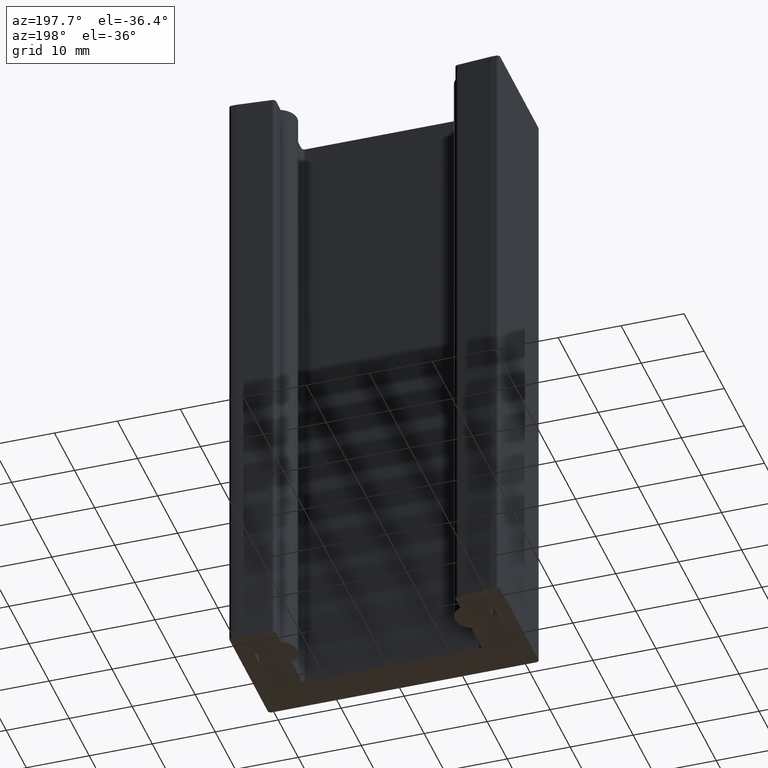
[diagram: clean part render]
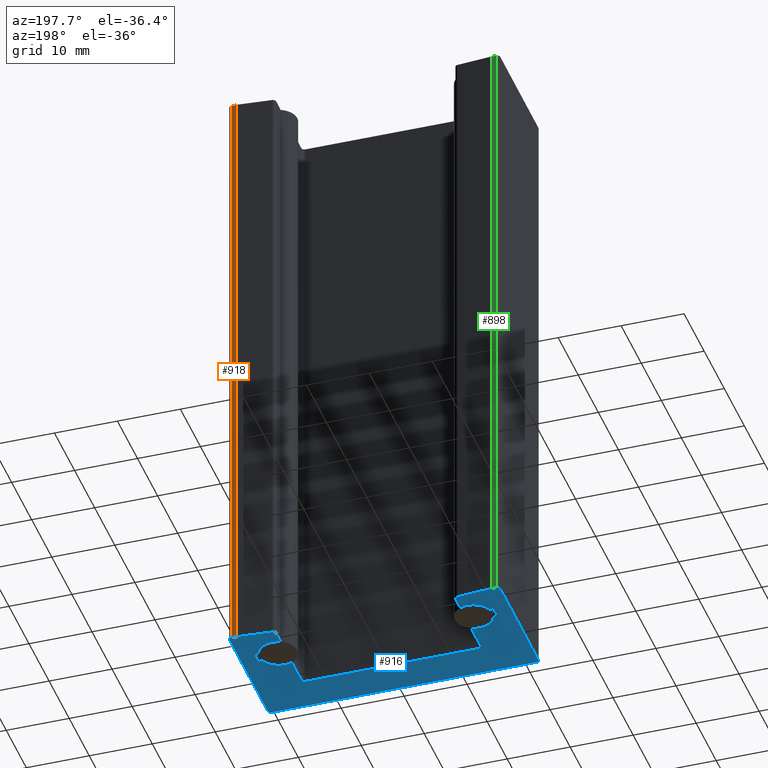
[diagram: same view with three faces highlighted in distinct colors, each labeled with its STEP entity id]
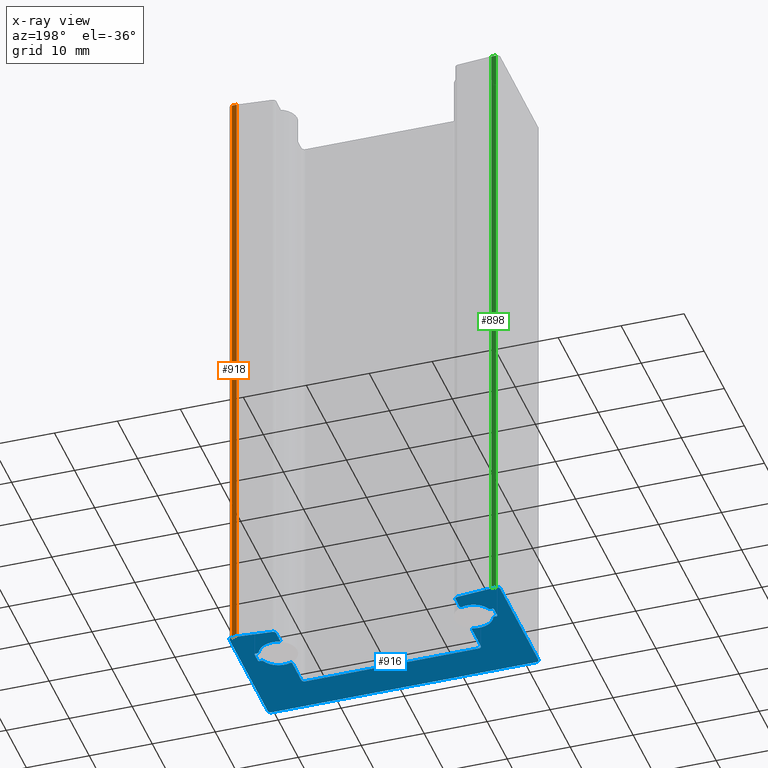
[diagram: x-ray of the same camera — body ghosted, the three highlighted faces saturated]
A machine part, auxiliary view with three faces highlighted in distinct colors.
The next image is the same camera in x-ray (body ghosted, the three faces saturated) — at least one of them is partly hidden behind the body in this view.
Their STEP definitions:

[orange] entity #918 — the highlighted planar face has unit normal (-0, 1, 0).
#44=PLANE('',#1085);
#82=FACE_OUTER_BOUND('',#131,.T.);
#131=EDGE_LOOP('',(#788,#789,#790,#791));
#158=LINE('',#1437,#239);
#214=LINE('',#1642,#295);
#215=LINE('',#1645,#296);
#216=LINE('',#1647,#297);
#239=VECTOR('',#1136,10.);
#295=VECTOR('',#1336,10.);
#296=VECTOR('',#1341,10.);
#297=VECTOR('',#1344,10.);
#376=VERTEX_POINT('',#1434);
#377=VERTEX_POINT('',#1436);
#453=VERTEX_POINT('',#1639);
#454=VERTEX_POINT('',#1641);
#468=EDGE_CURVE('',#376,#377,#158,.T.);
#571=EDGE_CURVE('',#453,#454,#214,.T.);
#573=EDGE_CURVE('',#454,#376,#215,.T.);
#574=EDGE_CURVE('',#377,#453,#216,.T.);
#788=ORIENTED_EDGE('',*,*,#573,.F.);
#789=ORIENTED_EDGE('',*,*,#571,.F.);
#790=ORIENTED_EDGE('',*,*,#574,.F.);
#791=ORIENTED_EDGE('',*,*,#468,.F.);
#918=ADVANCED_FACE('',(#82),#44,.T.);
#1085=AXIS2_PLACEMENT_3D('',#1646,#1342,#1343);
#1136=DIRECTION('',(-1.,-1.13604216473272E-15,0.));
#1336=DIRECTION('',(1.,1.13604216473272E-15,0.));
#1341=DIRECTION('',(0.,0.,1.));
#1342=DIRECTION('center_axis',(-1.13604216473272E-15,1.,0.));
#1343=DIRECTION('ref_axis',(-1.,-1.13604216473272E-15,0.));
#1344=DIRECTION('',(0.,0.,-1.));
#1434=CARTESIAN_POINT('',(21.,10.,-290.));
#1436=CARTESIAN_POINT('',(20.2200000000002,10.,-290.));
#1437=CARTESIAN_POINT('',(-5.64714855914739E-15,9.99999999999999,-290.));
#1639=CARTESIAN_POINT('',(20.2200000000002,10.,-390.));
#1641=CARTESIAN_POINT('',(21.,10.,-390.));
#1642=CARTESIAN_POINT('',(-5.64714855914739E-15,9.99999999999999,-390.));
#1645=CARTESIAN_POINT('',(21.,10.,0.));
#1646=CARTESIAN_POINT('Origin',(21.5,10.,0.));
#1647=CARTESIAN_POINT('',(20.2200000000002,10.,195.));

[blue] entity #916 — the highlighted planar face has unit normal (0, 0, -1).
#43=PLANE('',#1072);
#80=FACE_OUTER_BOUND('',#129,.T.);
#129=EDGE_LOOP('',(#740,#741,#742,#743,#744,#745,#746,#747,#748,#749,#750,
#751,#752,#753,#754,#755,#756,#757,#758,#759,#760,#761,#762,#763,#764,#765,
#766,#767,#768,#769,#770,#771,#772,#773,#774,#775,#776,#777,#778,#779,#780,
#781,#782,#783));
#155=LINE('',#1426,#236);
#175=LINE('',#1519,#256);
#177=LINE('',#1522,#258);
#180=LINE('',#1531,#261);
#184=LINE('',#1540,#265);
#189=LINE('',#1554,#270);
#193=LINE('',#1569,#274);
#196=LINE('',#1577,#277);
#199=LINE('',#1585,#280);
#203=LINE('',#1598,#284);
#207=LINE('',#1608,#288);
#208=LINE('',#1610,#289);
#209=LINE('',#1618,#290);
#210=LINE('',#1622,#291);
#211=LINE('',#1626,#292);
#212=LINE('',#1634,#293);
#213=LINE('',#1638,#294);
#214=LINE('',#1642,#295);
#236=VECTOR('',#1127,10.);
#256=VECTOR('',#1205,10.);
#258=VECTOR('',#1209,10.);
#261=VECTOR('',#1218,10.);
#265=VECTOR('',#1228,10.);
#270=VECTOR('',#1243,10.);
#274=VECTOR('',#1261,10.);
#277=VECTOR('',#1270,10.);
#280=VECTOR('',#1279,10.);
#284=VECTOR('',#1297,10.);
#288=VECTOR('',#1307,10.);
#289=VECTOR('',#1310,10.);
#290=VECTOR('',#1317,10.);
#291=VECTOR('',#1320,10.);
#292=VECTOR('',#1323,10.);
#293=VECTOR('',#1330,10.);
#294=VECTOR('',#1333,10.);
#295=VECTOR('',#1336,10.);
#313=CIRCLE('',#1005,0.5);
#340=CIRCLE('',#1035,0.5);
#341=CIRCLE('',#1039,0.5);
#342=CIRCLE('',#1042,0.5);
#343=CIRCLE('',#1045,0.5);
#344=CIRCLE('',#1047,0.5);
#345=CIRCLE('',#1050,0.2);
#346=CIRCLE('',#1052,3.);
#347=CIRCLE('',#1054,0.2);
#348=CIRCLE('',#1057,0.2);
#349=CIRCLE('',#1060,0.2);
#350=CIRCLE('',#1063,0.2);
#351=CIRCLE('',#1065,3.);
#352=CIRCLE('',#1067,0.2);
#353=CIRCLE('',#1070,0.5);
#354=CIRCLE('',#1073,0.2);
#355=CIRCLE('',#1074,3.);
#356=CIRCLE('',#1075,0.2);
#357=CIRCLE('',#1076,0.2);
#358=CIRCLE('',#1077,0.2);
#359=CIRCLE('',#1078,0.2);
#360=CIRCLE('',#1079,3.);
#361=CIRCLE('',#1080,0.2);
#362=CIRCLE('',#1081,0.5);
#363=CIRCLE('',#1082,0.5);
#364=CIRCLE('',#1083,0.5);
#367=VERTEX_POINT('',#1413);
#368=VERTEX_POINT('',#1414);
#372=VERTEX_POINT('',#1424);
#414=VERTEX_POINT('',#1512);
#415=VERTEX_POINT('',#1513);
#416=VERTEX_POINT('',#1518);
#417=VERTEX_POINT('',#1524);
#418=VERTEX_POINT('',#1526);
#419=VERTEX_POINT('',#1530);
#420=VERTEX_POINT('',#1534);
#421=VERTEX_POINT('',#1538);
#422=VERTEX_POINT('',#1542);
#423=VERTEX_POINT('',#1546);
#424=VERTEX_POINT('',#1547);
#425=VERTEX_POINT('',#1552);
#426=VERTEX_POINT('',#1556);
#427=VERTEX_POINT('',#1560);
#428=VERTEX_POINT('',#1564);
#429=VERTEX_POINT('',#1568);
#430=VERTEX_POINT('',#1572);
#431=VERTEX_POINT('',#1576);
#432=VERTEX_POINT('',#1580);
#433=VERTEX_POINT('',#1584);
#434=VERTEX_POINT('',#1588);
#435=VERTEX_POINT('',#1592);
#436=VERTEX_POINT('',#1600);
#437=VERTEX_POINT('',#1602);
#438=VERTEX_POINT('',#1606);
#439=VERTEX_POINT('',#1611);
#440=VERTEX_POINT('',#1613);
#441=VERTEX_POINT('',#1615);
#442=VERTEX_POINT('',#1617);
#443=VERTEX_POINT('',#1619);
#444=VERTEX_POINT('',#1621);
#445=VERTEX_POINT('',#1623);
#446=VERTEX_POINT('',#1625);
#447=VERTEX_POINT('',#1627);
#448=VERTEX_POINT('',#1629);
#449=VERTEX_POINT('',#1631);
#450=VERTEX_POINT('',#1633);
#451=VERTEX_POINT('',#1635);
#452=VERTEX_POINT('',#1637);
#453=VERTEX_POINT('',#1639);
#454=VERTEX_POINT('',#1641);
#457=EDGE_CURVE('',#367,#368,#313,.T.);
#463=EDGE_CURVE('',#372,#367,#155,.T.);
#506=EDGE_CURVE('',#414,#415,#340,.T.);
#509=EDGE_CURVE('',#416,#415,#175,.T.);
#511=EDGE_CURVE('',#414,#368,#177,.T.);
#513=EDGE_CURVE('',#418,#417,#341,.T.);
#515=EDGE_CURVE('',#418,#419,#180,.T.);
#517=EDGE_CURVE('',#372,#420,#342,.T.);
#520=EDGE_CURVE('',#421,#420,#184,.T.);
#522=EDGE_CURVE('',#421,#422,#343,.T.);
#523=EDGE_CURVE('',#423,#424,#344,.T.);
#527=EDGE_CURVE('',#425,#424,#189,.T.);
#528=EDGE_CURVE('',#426,#419,#345,.T.);
#530=EDGE_CURVE('',#426,#427,#346,.T.);
#532=EDGE_CURVE('',#428,#427,#347,.T.);
#534=EDGE_CURVE('',#428,#429,#193,.T.);
#536=EDGE_CURVE('',#430,#429,#348,.T.);
#538=EDGE_CURVE('',#430,#431,#196,.T.);
#540=EDGE_CURVE('',#432,#431,#349,.T.);
#542=EDGE_CURVE('',#432,#433,#199,.T.);
#544=EDGE_CURVE('',#434,#433,#350,.T.);
#546=EDGE_CURVE('',#434,#435,#351,.T.);
#548=EDGE_CURVE('',#425,#435,#352,.T.);
#549=EDGE_CURVE('',#423,#422,#203,.T.);
#551=EDGE_CURVE('',#436,#437,#353,.T.);
#554=EDGE_CURVE('',#436,#438,#207,.T.);
#555=EDGE_CURVE('',#417,#437,#208,.T.);
#556=EDGE_CURVE('',#439,#438,#354,.T.);
#557=EDGE_CURVE('',#439,#440,#355,.T.);
#558=EDGE_CURVE('',#441,#440,#356,.T.);
#559=EDGE_CURVE('',#441,#442,#209,.T.);
#560=EDGE_CURVE('',#443,#442,#357,.T.);
#561=EDGE_CURVE('',#443,#444,#210,.T.);
#562=EDGE_CURVE('',#445,#444,#358,.T.);
#563=EDGE_CURVE('',#445,#446,#211,.T.);
#564=EDGE_CURVE('',#447,#446,#359,.T.);
#565=EDGE_CURVE('',#447,#448,#360,.T.);
#566=EDGE_CURVE('',#449,#448,#361,.T.);
#567=EDGE_CURVE('',#449,#450,#212,.T.);
#568=EDGE_CURVE('',#451,#450,#362,.T.);
#569=EDGE_CURVE('',#451,#452,#213,.T.);
#570=EDGE_CURVE('',#453,#452,#363,.T.);
#571=EDGE_CURVE('',#453,#454,#214,.T.);
#572=EDGE_CURVE('',#416,#454,#364,.T.);
#740=ORIENTED_EDGE('',*,*,#457,.F.);
#741=ORIENTED_EDGE('',*,*,#463,.F.);
#742=ORIENTED_EDGE('',*,*,#517,.T.);
#743=ORIENTED_EDGE('',*,*,#520,.F.);
#744=ORIENTED_EDGE('',*,*,#522,.T.);
#745=ORIENTED_EDGE('',*,*,#549,.F.);
#746=ORIENTED_EDGE('',*,*,#523,.T.);
#747=ORIENTED_EDGE('',*,*,#527,.F.);
#748=ORIENTED_EDGE('',*,*,#548,.T.);
#749=ORIENTED_EDGE('',*,*,#546,.F.);
#750=ORIENTED_EDGE('',*,*,#544,.T.);
#751=ORIENTED_EDGE('',*,*,#542,.F.);
#752=ORIENTED_EDGE('',*,*,#540,.T.);
#753=ORIENTED_EDGE('',*,*,#538,.F.);
#754=ORIENTED_EDGE('',*,*,#536,.T.);
#755=ORIENTED_EDGE('',*,*,#534,.F.);
#756=ORIENTED_EDGE('',*,*,#532,.T.);
#757=ORIENTED_EDGE('',*,*,#530,.F.);
#758=ORIENTED_EDGE('',*,*,#528,.T.);
#759=ORIENTED_EDGE('',*,*,#515,.F.);
#760=ORIENTED_EDGE('',*,*,#513,.T.);
#761=ORIENTED_EDGE('',*,*,#555,.T.);
#762=ORIENTED_EDGE('',*,*,#551,.F.);
#763=ORIENTED_EDGE('',*,*,#554,.T.);
#764=ORIENTED_EDGE('',*,*,#556,.F.);
#765=ORIENTED_EDGE('',*,*,#557,.T.);
#766=ORIENTED_EDGE('',*,*,#558,.F.);
#767=ORIENTED_EDGE('',*,*,#559,.T.);
#768=ORIENTED_EDGE('',*,*,#560,.F.);
#769=ORIENTED_EDGE('',*,*,#561,.T.);
#770=ORIENTED_EDGE('',*,*,#562,.F.);
#771=ORIENTED_EDGE('',*,*,#563,.T.);
#772=ORIENTED_EDGE('',*,*,#564,.F.);
#773=ORIENTED_EDGE('',*,*,#565,.T.);
#774=ORIENTED_EDGE('',*,*,#566,.F.);
#775=ORIENTED_EDGE('',*,*,#567,.T.);
#776=ORIENTED_EDGE('',*,*,#568,.F.);
#777=ORIENTED_EDGE('',*,*,#569,.T.);
#778=ORIENTED_EDGE('',*,*,#570,.F.);
#779=ORIENTED_EDGE('',*,*,#571,.T.);
#780=ORIENTED_EDGE('',*,*,#572,.F.);
#781=ORIENTED_EDGE('',*,*,#509,.T.);
#782=ORIENTED_EDGE('',*,*,#506,.F.);
#783=ORIENTED_EDGE('',*,*,#511,.T.);
#916=ADVANCED_FACE('',(#80),#43,.T.);
#1005=AXIS2_PLACEMENT_3D('',#1415,#1117,#1118);
#1035=AXIS2_PLACEMENT_3D('',#1514,#1199,#1200);
#1039=AXIS2_PLACEMENT_3D('',#1527,#1213,#1214);
#1042=AXIS2_PLACEMENT_3D('',#1535,#1222,#1223);
#1045=AXIS2_PLACEMENT_3D('',#1544,#1232,#1233);
#1047=AXIS2_PLACEMENT_3D('',#1548,#1236,#1237);
#1050=AXIS2_PLACEMENT_3D('',#1557,#1246,#1247);
#1052=AXIS2_PLACEMENT_3D('',#1561,#1251,#1252);
#1054=AXIS2_PLACEMENT_3D('',#1565,#1256,#1257);
#1057=AXIS2_PLACEMENT_3D('',#1573,#1265,#1266);
#1060=AXIS2_PLACEMENT_3D('',#1581,#1274,#1275);
#1063=AXIS2_PLACEMENT_3D('',#1589,#1283,#1284);
#1065=AXIS2_PLACEMENT_3D('',#1593,#1288,#1289);
#1067=AXIS2_PLACEMENT_3D('',#1596,#1293,#1294);
#1070=AXIS2_PLACEMENT_3D('',#1603,#1301,#1302);
#1072=AXIS2_PLACEMENT_3D('',#1609,#1308,#1309);
#1073=AXIS2_PLACEMENT_3D('',#1612,#1311,#1312);
#1074=AXIS2_PLACEMENT_3D('',#1614,#1313,#1314);
#1075=AXIS2_PLACEMENT_3D('',#1616,#1315,#1316);
#1076=AXIS2_PLACEMENT_3D('',#1620,#1318,#1319);
#1077=AXIS2_PLACEMENT_3D('',#1624,#1321,#1322);
#1078=AXIS2_PLACEMENT_3D('',#1628,#1324,#1325);
#1079=AXIS2_PLACEMENT_3D('',#1630,#1326,#1327);
#1080=AXIS2_PLACEMENT_3D('',#1632,#1328,#1329);
#1081=AXIS2_PLACEMENT_3D('',#1636,#1331,#1332);
#1082=AXIS2_PLACEMENT_3D('',#1640,#1334,#1335);
#1083=AXIS2_PLACEMENT_3D('',#1643,#1337,#1338);
#1117=DIRECTION('center_axis',(0.,0.,1.));
#1118=DIRECTION('ref_axis',(-0.707106781186546,-0.707106781186549,0.));
#1127=DIRECTION('',(7.8055758929729E-16,-1.,0.));
#1199=DIRECTION('center_axis',(0.,0.,1.));
#1200=DIRECTION('ref_axis',(0.707106781186546,-0.707106781186549,0.));
#1205=DIRECTION('',(4.44089209850063E-16,-1.,0.));
#1209=DIRECTION('',(-1.,-1.03276560430247E-16,0.));
#1213=DIRECTION('center_axis',(0.,0.,1.));
#1214=DIRECTION('ref_axis',(-0.707106781186545,-0.70710678118655,0.));
#1218=DIRECTION('',(-7.30467679284014E-16,1.,0.));
#1222=DIRECTION('center_axis',(0.,0.,-1.));
#1223=DIRECTION('ref_axis',(-0.707106781186547,0.707106781186548,0.));
#1228=DIRECTION('',(-1.,-8.86046344146347E-17,0.));
#1232=DIRECTION('center_axis',(0.,0.,-1.));
#1233=DIRECTION('ref_axis',(0.0436193873653401,0.999048221581858,0.));
#1236=DIRECTION('center_axis',(0.,0.,-1.));
#1237=DIRECTION('ref_axis',(0.737277336810123,0.675590207615661,0.));
#1243=DIRECTION('',(-7.30467679284014E-16,1.,0.));
#1246=DIRECTION('center_axis',(0.,0.,-1.));
#1247=DIRECTION('ref_axis',(0.579601155968485,0.814900300650329,0.));
#1251=DIRECTION('center_axis',(0.,0.,-1.));
#1252=DIRECTION('ref_axis',(-1.,-1.22464679914735E-15,0.));
#1256=DIRECTION('center_axis',(0.,0.,-1.));
#1257=DIRECTION('ref_axis',(0.559016994374946,0.829156197588851,0.));
#1261=DIRECTION('',(-1.,-2.05123097603624E-15,0.));
#1265=DIRECTION('center_axis',(0.,0.,1.));
#1266=DIRECTION('ref_axis',(-0.707106781186547,-0.707106781186548,0.));
#1270=DIRECTION('',(-1.22464679914735E-15,1.,0.));
#1274=DIRECTION('center_axis',(0.,0.,1.));
#1275=DIRECTION('ref_axis',(-0.707106781186548,0.707106781186547,0.));
#1279=DIRECTION('',(1.,1.22464679914735E-15,0.));
#1283=DIRECTION('center_axis',(0.,0.,-1.));
#1284=DIRECTION('ref_axis',(0.559016994374947,-0.829156197588851,0.));
#1288=DIRECTION('center_axis',(0.,0.,-1.));
#1289=DIRECTION('ref_axis',(-1.,-1.22464679914735E-15,0.));
#1293=DIRECTION('center_axis',(0.,0.,-1.));
#1294=DIRECTION('ref_axis',(0.579601155968474,-0.814900300650336,0.));
#1297=DIRECTION('',(-0.996194698091746,0.0871557427476573,0.));
#1301=DIRECTION('center_axis',(0.,0.,-1.));
#1302=DIRECTION('ref_axis',(0.707106781186546,-0.707106781186549,0.));
#1307=DIRECTION('',(-4.94179119863339E-16,1.,0.));
#1308=DIRECTION('center_axis',(0.,0.,-1.));
#1309=DIRECTION('ref_axis',(-1.,0.,0.));
#1310=DIRECTION('',(1.,3.5059674461847E-16,0.));
#1311=DIRECTION('center_axis',(0.,0.,1.));
#1312=DIRECTION('ref_axis',(-0.579601155968486,0.814900300650328,0.));
#1313=DIRECTION('center_axis',(0.,0.,1.));
#1314=DIRECTION('ref_axis',(1.,0.,0.));
#1315=DIRECTION('center_axis',(0.,0.,1.));
#1316=DIRECTION('ref_axis',(-0.559016994374947,0.82915619758885,0.));
#1317=DIRECTION('',(1.,-8.26584176888886E-16,0.));
#1318=DIRECTION('center_axis',(0.,0.,-1.));
#1319=DIRECTION('ref_axis',(0.707106781186548,-0.707106781186548,0.));
#1320=DIRECTION('',(0.,1.,0.));
#1321=DIRECTION('center_axis',(0.,0.,-1.));
#1322=DIRECTION('ref_axis',(0.707106781186548,0.707106781186548,0.));
#1323=DIRECTION('',(-1.,0.,0.));
#1324=DIRECTION('center_axis',(0.,0.,1.));
#1325=DIRECTION('ref_axis',(-0.559016994374946,-0.829156197588851,0.));
#1326=DIRECTION('center_axis',(0.,0.,1.));
#1327=DIRECTION('ref_axis',(1.,0.,0.));
#1328=DIRECTION('center_axis',(0.,0.,1.));
#1329=DIRECTION('ref_axis',(-0.579601155968473,-0.814900300650337,0.));
#1330=DIRECTION('',(-4.94179119863339E-16,1.,0.));
#1331=DIRECTION('center_axis',(0.,0.,1.));
#1332=DIRECTION('ref_axis',(-0.737277336810124,0.67559020761566,0.));
#1333=DIRECTION('',(0.996194698091746,0.0871557427476585,0.));
#1334=DIRECTION('center_axis',(0.,0.,1.));
#1335=DIRECTION('ref_axis',(-0.0436193873653413,0.999048221581858,0.));
#1336=DIRECTION('',(1.,1.13604216473272E-15,0.));
#1337=DIRECTION('center_axis',(0.,0.,1.));
#1338=DIRECTION('ref_axis',(0.707106781186546,0.707106781186549,0.));
#1413=CARTESIAN_POINT('',(-21.5,-9.49999999999999,-390.));
#1414=CARTESIAN_POINT('',(-21.,-9.99999999999999,-390.));
#1415=CARTESIAN_POINT('Origin',(-21.,-9.49999999999999,-390.));
#1424=CARTESIAN_POINT('',(-21.5,9.49999999999999,-390.));
#1426=CARTESIAN_POINT('',(-21.5,9.99999999999999,-390.));
#1512=CARTESIAN_POINT('',(21.,-9.99999999999999,-390.));
#1513=CARTESIAN_POINT('',(21.5,-9.49999999999999,-390.));
#1514=CARTESIAN_POINT('Origin',(21.,-9.49999999999999,-390.));
#1518=CARTESIAN_POINT('',(21.5,9.50000000000001,-390.));
#1519=CARTESIAN_POINT('',(21.5,10.,-390.));
#1522=CARTESIAN_POINT('',(21.5,-9.99999999999999,-390.));
#1524=CARTESIAN_POINT('',(-13.75,-4.,-390.));
#1526=CARTESIAN_POINT('',(-14.25,-3.5,-390.));
#1527=CARTESIAN_POINT('Origin',(-13.75,-3.5,-390.));
#1530=CARTESIAN_POINT('',(-14.25,0.977170199961623,-390.));
#1531=CARTESIAN_POINT('',(-14.25,4.73980129876094,-390.));
#1534=CARTESIAN_POINT('',(-21.,9.99999999999999,-390.));
#1535=CARTESIAN_POINT('Origin',(-21.,9.49999999999999,-390.));
#1538=CARTESIAN_POINT('',(-20.2200000000002,9.99999999999999,-390.));
#1540=CARTESIAN_POINT('',(-5.64714855914739E-15,9.99999999999999,-390.));
#1542=CARTESIAN_POINT('',(-20.1764221286264,9.99809734904586,-390.));
#1544=CARTESIAN_POINT('Origin',(-20.2200000000002,9.49999999999999,-390.));
#1546=CARTESIAN_POINT('',(-14.7064221286262,9.51953435955905,-390.));
#1547=CARTESIAN_POINT('',(-14.25,9.02143701051317,-390.));
#1548=CARTESIAN_POINT('Origin',(-14.75,9.02143701051317,-390.));
#1552=CARTESIAN_POINT('',(-14.25,7.02282980003837,-390.));
#1554=CARTESIAN_POINT('',(-14.25,4.73980129876094,-390.));
#1556=CARTESIAN_POINT('',(-14.515625,1.16609706246402,-390.));
#1557=CARTESIAN_POINT('Origin',(-14.45,0.977170199961623,-390.));
#1560=CARTESIAN_POINT('',(-18.2810744326609,2.87499999999999,-390.));
#1561=CARTESIAN_POINT('Origin',(-15.5,3.99999999999999,-390.));
#1564=CARTESIAN_POINT('',(-18.4664793948382,2.99999999999999,-390.));
#1565=CARTESIAN_POINT('Origin',(-18.4664793948382,2.79999999999999,-390.));
#1568=CARTESIAN_POINT('',(-18.8,2.99999999999999,-390.));
#1569=CARTESIAN_POINT('',(-14.875,3.,-390.));
#1572=CARTESIAN_POINT('',(-19.,3.19999999999999,-390.));
#1573=CARTESIAN_POINT('Origin',(-18.8,3.19999999999999,-390.));
#1576=CARTESIAN_POINT('',(-19.,4.79999999999999,-390.));
#1577=CARTESIAN_POINT('',(-19.,2.49999999999999,-390.));
#1580=CARTESIAN_POINT('',(-18.8,4.99999999999999,-390.));
#1581=CARTESIAN_POINT('Origin',(-18.8,4.79999999999999,-390.));
#1584=CARTESIAN_POINT('',(-18.4664793948383,4.99999999999999,-390.));
#1585=CARTESIAN_POINT('',(-14.5392135623731,4.99999999999999,-390.));
#1588=CARTESIAN_POINT('',(-18.2810744326609,5.12499999999999,-390.));
#1589=CARTESIAN_POINT('Origin',(-18.4664793948383,5.19999999999999,-390.));
#1592=CARTESIAN_POINT('',(-14.515625,6.83390293753597,-390.));
#1593=CARTESIAN_POINT('Origin',(-15.5,3.99999999999999,-390.));
#1596=CARTESIAN_POINT('Origin',(-14.45,7.02282980003837,-390.));
#1598=CARTESIAN_POINT('',(-15.0758490513706,9.55185502730045,-390.));
#1600=CARTESIAN_POINT('',(14.25,-3.49999999999999,-390.));
#1602=CARTESIAN_POINT('',(13.75,-3.99999999999999,-390.));
#1603=CARTESIAN_POINT('Origin',(13.75,-3.49999999999999,-390.));
#1606=CARTESIAN_POINT('',(14.25,0.977170199961641,-390.));
#1608=CARTESIAN_POINT('',(14.25,4.73980129876096,-390.));
#1609=CARTESIAN_POINT('Origin',(10.75,6.66133814775094E-15,-390.));
#1610=CARTESIAN_POINT('',(12.5,-3.99999999999999,-390.));
#1611=CARTESIAN_POINT('',(14.515625,1.16609706246404,-390.));
#1612=CARTESIAN_POINT('Origin',(14.45,0.977170199961641,-390.));
#1613=CARTESIAN_POINT('',(18.2810744326609,2.87500000000001,-390.));
#1614=CARTESIAN_POINT('Origin',(15.5,4.00000000000001,-390.));
#1615=CARTESIAN_POINT('',(18.4664793948382,3.00000000000001,-390.));
#1616=CARTESIAN_POINT('Origin',(18.4664793948382,2.80000000000001,-390.));
#1617=CARTESIAN_POINT('',(18.8,3.00000000000001,-390.));
#1618=CARTESIAN_POINT('',(14.875,3.00000000000002,-390.));
#1619=CARTESIAN_POINT('',(19.,3.20000000000001,-390.));
#1620=CARTESIAN_POINT('Origin',(18.8,3.20000000000001,-390.));
#1621=CARTESIAN_POINT('',(19.,4.80000000000001,-390.));
#1622=CARTESIAN_POINT('',(19.,2.50000000000001,-390.));
#1623=CARTESIAN_POINT('',(18.8,5.00000000000001,-390.));
#1624=CARTESIAN_POINT('Origin',(18.8,4.80000000000001,-390.));
#1625=CARTESIAN_POINT('',(18.4664793948382,5.00000000000001,-390.));
#1626=CARTESIAN_POINT('',(14.5392135623731,5.00000000000001,-390.));
#1627=CARTESIAN_POINT('',(18.2810744326609,5.12500000000001,-390.));
#1628=CARTESIAN_POINT('Origin',(18.4664793948382,5.20000000000001,-390.));
#1629=CARTESIAN_POINT('',(14.515625,6.83390293753598,-390.));
#1630=CARTESIAN_POINT('Origin',(15.5,4.00000000000001,-390.));
#1631=CARTESIAN_POINT('',(14.25,7.02282980003838,-390.));
#1632=CARTESIAN_POINT('Origin',(14.45,7.02282980003838,-390.));
#1633=CARTESIAN_POINT('',(14.25,9.02143701051319,-390.));
#1634=CARTESIAN_POINT('',(14.25,4.73980129876096,-390.));
#1635=CARTESIAN_POINT('',(14.7064221286262,9.51953435955906,-390.));
#1636=CARTESIAN_POINT('Origin',(14.75,9.02143701051319,-390.));
#1637=CARTESIAN_POINT('',(20.1764221286263,9.99809734904589,-390.));
#1638=CARTESIAN_POINT('',(15.0758490513706,9.55185502730047,-390.));
#1639=CARTESIAN_POINT('',(20.2200000000002,10.,-390.));
#1640=CARTESIAN_POINT('Origin',(20.2200000000002,9.50000000000001,-390.));
#1641=CARTESIAN_POINT('',(21.,10.,-390.));
#1642=CARTESIAN_POINT('',(-5.64714855914739E-15,9.99999999999999,-390.));
#1643=CARTESIAN_POINT('Origin',(21.,9.50000000000001,-390.));

[green] entity #898 — the highlighted planar face has unit normal (0, -1, 0).
#36=PLANE('',#1043);
#62=FACE_OUTER_BOUND('',#111,.T.);
#111=EDGE_LOOP('',(#668,#669,#670,#671));
#172=LINE('',#1509,#253);
#182=LINE('',#1536,#263);
#183=LINE('',#1539,#264);
#184=LINE('',#1540,#265);
#253=VECTOR('',#1194,10.);
#263=VECTOR('',#1224,10.);
#264=VECTOR('',#1227,10.);
#265=VECTOR('',#1228,10.);
#412=VERTEX_POINT('',#1506);
#413=VERTEX_POINT('',#1508);
#420=VERTEX_POINT('',#1534);
#421=VERTEX_POINT('',#1538);
#504=EDGE_CURVE('',#413,#412,#172,.T.);
#518=EDGE_CURVE('',#420,#413,#182,.T.);
#519=EDGE_CURVE('',#412,#421,#183,.T.);
#520=EDGE_CURVE('',#421,#420,#184,.T.);
#668=ORIENTED_EDGE('',*,*,#518,.T.);
#669=ORIENTED_EDGE('',*,*,#504,.T.);
#670=ORIENTED_EDGE('',*,*,#519,.T.);
#671=ORIENTED_EDGE('',*,*,#520,.T.);
#898=ADVANCED_FACE('',(#62),#36,.F.);
#1043=AXIS2_PLACEMENT_3D('',#1537,#1225,#1226);
#1194=DIRECTION('',(1.,8.86046344146347E-17,0.));
#1224=DIRECTION('',(0.,0.,1.));
#1225=DIRECTION('center_axis',(8.86046344146347E-17,-1.,0.));
#1226=DIRECTION('ref_axis',(1.,8.86046344146347E-17,0.));
#1227=DIRECTION('',(0.,0.,-1.));
#1228=DIRECTION('',(-1.,-8.86046344146347E-17,0.));
#1506=CARTESIAN_POINT('',(-20.2200000000002,9.99999999999999,-290.));
#1508=CARTESIAN_POINT('',(-21.,9.99999999999999,-290.));
#1509=CARTESIAN_POINT('',(-5.64714855914739E-15,9.99999999999999,-290.));
#1534=CARTESIAN_POINT('',(-21.,9.99999999999999,-390.));
#1536=CARTESIAN_POINT('',(-21.,9.99999999999999,0.));
#1537=CARTESIAN_POINT('Origin',(-21.5,9.99999999999999,0.));
#1538=CARTESIAN_POINT('',(-20.2200000000002,9.99999999999999,-390.));
#1539=CARTESIAN_POINT('',(-20.2200000000002,9.99999999999999,195.));
#1540=CARTESIAN_POINT('',(-5.64714855914739E-15,9.99999999999999,-390.));